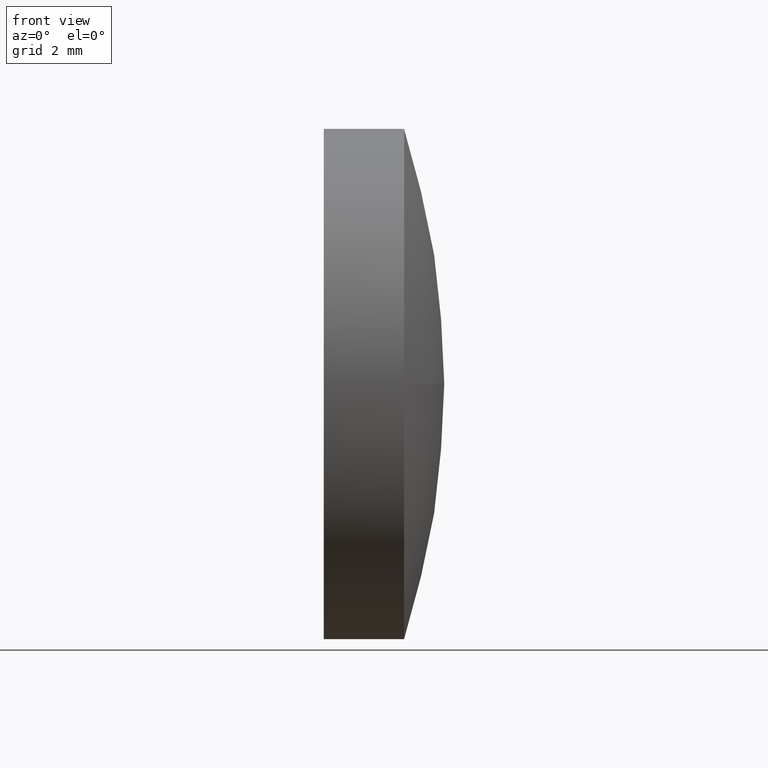
[diagram: clean part render]
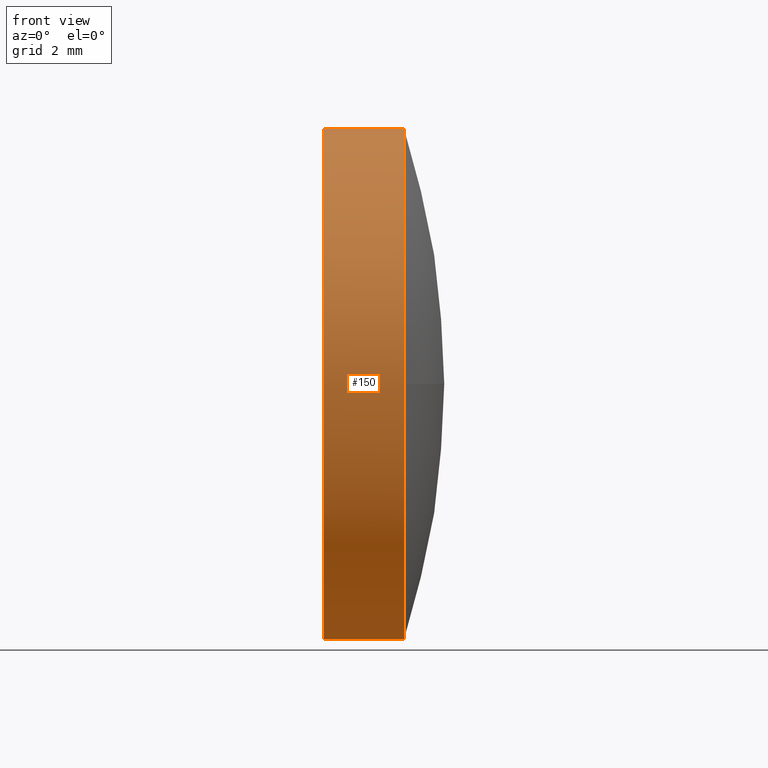
[diagram: same view with one face highlighted and labeled with its STEP entity id]
A machine part, front view. The second image highlights one B-rep face of the part: STEP entity #150.
In plain terms, the highlighted cylindrical surface (partial cylindrical patch) has radius 6.35 mm, axis along (-1, -0, -0).
Its self-contained STEP definition (entity closure, byte-faithful):
#4 = CIRCLE ( 'NONE', #116, 6.350000000000022700 ) ;
#5 = EDGE_CURVE ( 'NONE', #26, #20, #4, .T. ) ;
#11 = EDGE_CURVE ( 'NONE', #20, #161, #38, .T. ) ;
#14 = AXIS2_PLACEMENT_3D ( 'NONE', #28, #40, #120 ) ;
#20 = VERTEX_POINT ( 'NONE', #174 ) ;
#22 = EDGE_CURVE ( 'NONE', #163, #23, #106, .T. ) ;
#23 = VERTEX_POINT ( 'NONE', #84 ) ;
#26 = VERTEX_POINT ( 'NONE', #43 ) ;
#28 = CARTESIAN_POINT ( 'NONE',  ( 534.5609711574720700, 126.4674666773100100, 0.0000000000000000000 ) ) ;
#38 = CIRCLE ( 'NONE', #14, 6.350000000000022700 ) ;
#40 = DIRECTION ( 'NONE',  ( -1.000000000000000000, -0.0000000000000000000, -0.0000000000000000000 ) ) ;
#43 = CARTESIAN_POINT ( 'NONE',  ( 534.5609711574720700, 126.4674666773100100, -6.350000000000022700 ) ) ;
#45 = VECTOR ( 'NONE', #175, 1000.000000000000000 ) ;
#50 = DIRECTION ( 'NONE',  ( -1.000000000000000000, -0.0000000000000000000, -0.0000000000000000000 ) ) ;
#55 = ORIENTED_EDGE ( 'NONE', *, *, #5, .T. ) ;
#59 = LINE ( 'NONE', #60, #45 ) ;
#60 = CARTESIAN_POINT ( 'NONE',  ( 530.3004400116176400, 126.4674666773100100, 6.350000000000022700 ) ) ;
#61 = ORIENTED_EDGE ( 'NONE', *, *, #172, .T. ) ;
#68 = AXIS2_PLACEMENT_3D ( 'NONE', #132, #50, #104 ) ;
#69 = CARTESIAN_POINT ( 'NONE',  ( 534.5609711574720700, 126.4674666773100100, 0.0000000000000000000 ) ) ;
#75 = EDGE_LOOP ( 'NONE', ( #160, #55, #88, #61, #82 ) ) ;
#82 = ORIENTED_EDGE ( 'NONE', *, *, #22, .F. ) ;
#84 = CARTESIAN_POINT ( 'NONE',  ( 532.5609711574720700, 126.4674666773100100, 6.350000000000022700 ) ) ;
#88 = ORIENTED_EDGE ( 'NONE', *, *, #11, .T. ) ;
#94 = DIRECTION ( 'NONE',  ( 0.0000000000000000000, 0.0000000000000000000, 1.000000000000000000 ) ) ;
#96 = CARTESIAN_POINT ( 'NONE',  ( 530.3004400116176400, 126.4674666773100100, -6.350000000000022700 ) ) ;
#97 = DIRECTION ( 'NONE',  ( -1.000000000000000000, -0.0000000000000000000, -0.0000000000000000000 ) ) ;
#100 = FACE_OUTER_BOUND ( 'NONE', #75, .T. ) ;
#101 = CARTESIAN_POINT ( 'NONE',  ( 532.5609711574720700, 126.4674666773100100, -6.350000000000022700 ) ) ;
#104 = DIRECTION ( 'NONE',  ( 0.0000000000000000000, 0.0000000000000000000, 1.000000000000000000 ) ) ;
#106 = CIRCLE ( 'NONE', #183, 6.350000000000022700 ) ;
#109 = DIRECTION ( 'NONE',  ( -1.000000000000000000, -0.0000000000000000000, -0.0000000000000000000 ) ) ;
#110 = LINE ( 'NONE', #96, #114 ) ;
#114 = VECTOR ( 'NONE', #109, 1000.000000000000000 ) ;
#116 = AXIS2_PLACEMENT_3D ( 'NONE', #69, #135, #94 ) ;
#120 = DIRECTION ( 'NONE',  ( 0.0000000000000000000, 0.0000000000000000000, 1.000000000000000000 ) ) ;
#128 = EDGE_CURVE ( 'NONE', #26, #163, #110, .T. ) ;
#132 = CARTESIAN_POINT ( 'NONE',  ( 530.3004400116176400, 126.4674666773100100, 0.0000000000000000000 ) ) ;
#135 = DIRECTION ( 'NONE',  ( -1.000000000000000000, -0.0000000000000000000, -0.0000000000000000000 ) ) ;
#150 = ADVANCED_FACE ( 'NONE', ( #100 ), #162, .T. ) ;
#154 = CARTESIAN_POINT ( 'NONE',  ( 532.5609711574720700, 126.4674666773100100, 0.0000000000000000000 ) ) ;
#155 = DIRECTION ( 'NONE',  ( 0.0000000000000000000, 0.0000000000000000000, 1.000000000000000000 ) ) ;
#158 = CARTESIAN_POINT ( 'NONE',  ( 534.5609711574720700, 126.4674666773100100, 6.350000000000022700 ) ) ;
#160 = ORIENTED_EDGE ( 'NONE', *, *, #128, .F. ) ;
#161 = VERTEX_POINT ( 'NONE', #158 ) ;
#162 = CYLINDRICAL_SURFACE ( 'NONE', #68, 6.350000000000022700 ) ;
#163 = VERTEX_POINT ( 'NONE', #101 ) ;
#172 = EDGE_CURVE ( 'NONE', #161, #23, #59, .T. ) ;
#174 = CARTESIAN_POINT ( 'NONE',  ( 534.5609711574720700, 120.1174666773099600, -7.776507174585702000E-016 ) ) ;
#175 = DIRECTION ( 'NONE',  ( -1.000000000000000000, -0.0000000000000000000, -0.0000000000000000000 ) ) ;
#183 = AXIS2_PLACEMENT_3D ( 'NONE', #154, #97, #155 ) ;